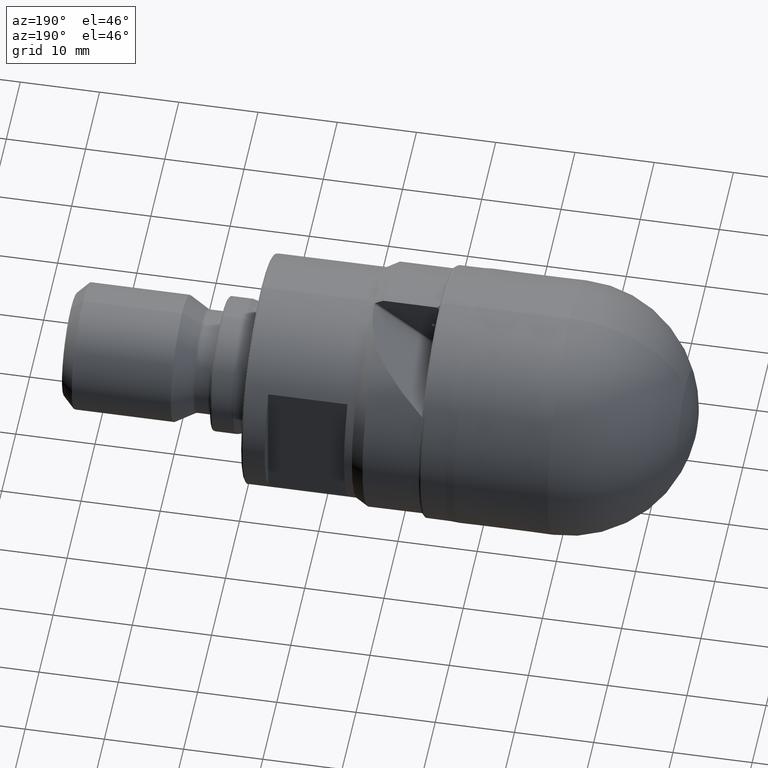
[diagram: clean part render]
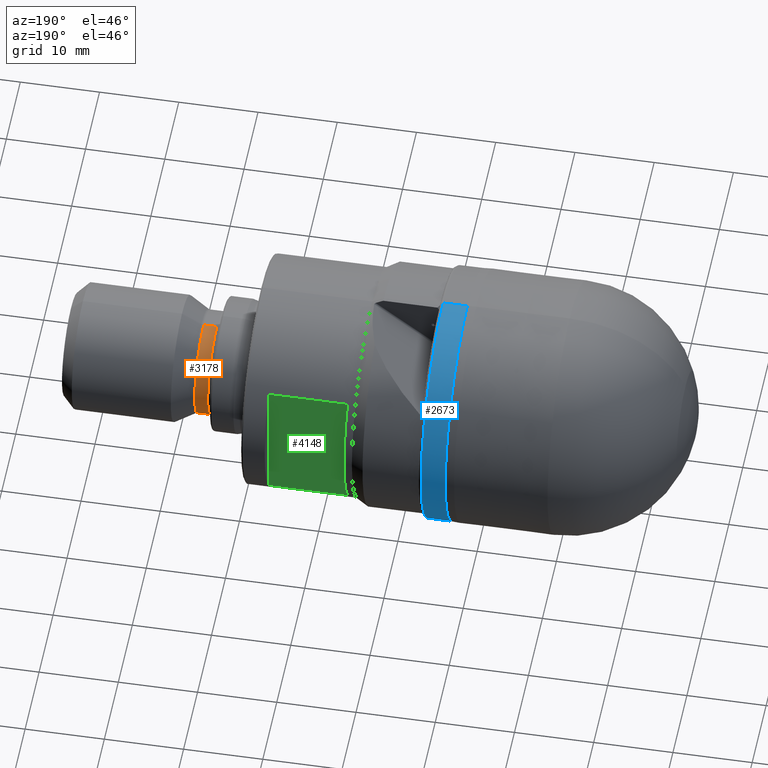
[diagram: same view with three faces highlighted in distinct colors, each labeled with its STEP entity id]
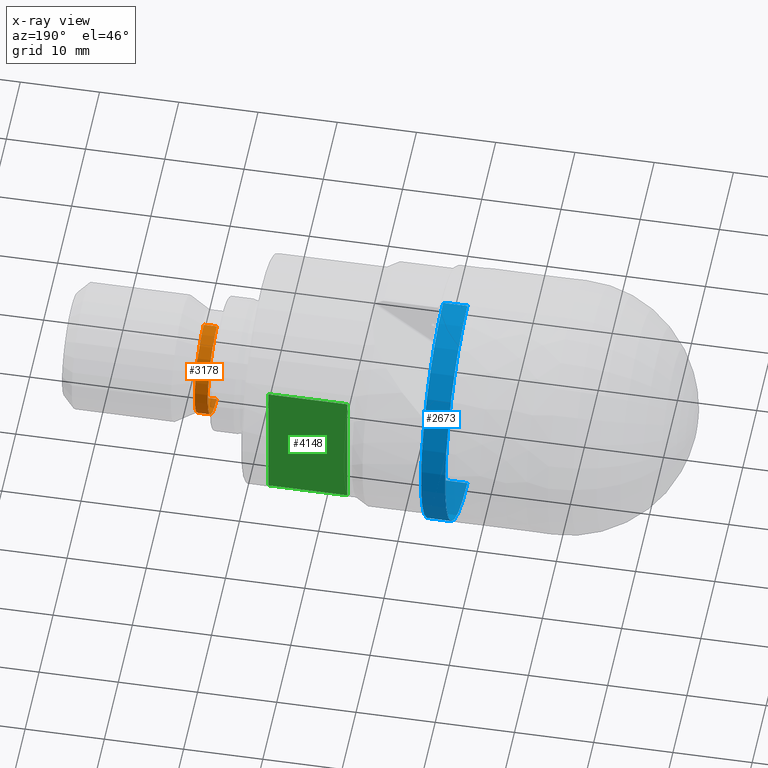
[diagram: x-ray of the same camera — body ghosted, the three highlighted faces saturated]
A machine part, auxiliary view with three faces highlighted in distinct colors.
The next image is the same camera in x-ray (body ghosted, the three faces saturated) — at least one of them is partly hidden behind the body in this view.
Their STEP definitions:

[orange] entity #3178 — the highlighted cylindrical surface (partial cylindrical patch) has radius 6.5 mm, axis along (-1, 0, 0).
#43 = CYLINDRICAL_SURFACE ( 'NONE', #177, 6.499999999999997335 ) ;
#177 = AXIS2_PLACEMENT_3D ( 'NONE', #3841, #1964, #1590 ) ;
#307 = EDGE_CURVE ( 'NONE', #3893, #3028, #3618, .T. ) ;
#576 = CARTESIAN_POINT ( 'NONE',  ( -4.762142644779060241, 0.0000000000000000000, 6.499999999999997335 ) ) ;
#906 = LINE ( 'NONE', #1296, #1303 ) ;
#1093 = EDGE_LOOP ( 'NONE', ( #2242, #4563, #3816, #3951 ) ) ;
#1296 = CARTESIAN_POINT ( 'NONE',  ( -4.762142644779060241, 7.960204194457792519E-16, -6.499999999999997335 ) ) ;
#1303 = VECTOR ( 'NONE', #3323, 1000.000000000000000 ) ;
#1498 = CIRCLE ( 'NONE', #4669, 6.499999999999999112 ) ;
#1590 = DIRECTION ( 'NONE',  ( 0.0000000000000000000, 0.0000000000000000000, 1.000000000000000000 ) ) ;
#1633 = CIRCLE ( 'NONE', #4796, 6.499999999999994671 ) ;
#1738 = DIRECTION ( 'NONE',  ( -1.000000000000000000, 0.0000000000000000000, 0.0000000000000000000 ) ) ;
#1964 = DIRECTION ( 'NONE',  ( -1.000000000000000000, 0.0000000000000000000, 0.0000000000000000000 ) ) ;
#2071 = DIRECTION ( 'NONE',  ( 0.0000000000000000000, 0.0000000000000000000, 1.000000000000000000 ) ) ;
#2105 = DIRECTION ( 'NONE',  ( -1.000000000000000000, 0.0000000000000000000, 0.0000000000000000000 ) ) ;
#2136 = DIRECTION ( 'NONE',  ( -1.000000000000000000, 0.0000000000000000000, 0.0000000000000000000 ) ) ;
#2197 = VERTEX_POINT ( 'NONE', #4042 ) ;
#2240 = VERTEX_POINT ( 'NONE', #4544 ) ;
#2242 = ORIENTED_EDGE ( 'NONE', *, *, #4902, .T. ) ;
#2305 = VECTOR ( 'NONE', #2105, 1000.000000000000000 ) ;
#2521 = DIRECTION ( 'NONE',  ( 0.0000000000000000000, 0.0000000000000000000, 1.000000000000000000 ) ) ;
#2629 = EDGE_CURVE ( 'NONE', #3028, #2197, #1498, .T. ) ;
#3028 = VERTEX_POINT ( 'NONE', #4861 ) ;
#3178 = ADVANCED_FACE ( 'NONE', ( #3451 ), #43, .T. ) ;
#3224 = CARTESIAN_POINT ( 'NONE',  ( 56.25675228318800691, 0.0000000000000000000, 0.0000000000000000000 ) ) ;
#3323 = DIRECTION ( 'NONE',  ( -1.000000000000000000, 0.0000000000000000000, 0.0000000000000000000 ) ) ;
#3451 = FACE_OUTER_BOUND ( 'NONE', #1093, .T. ) ;
#3485 = CARTESIAN_POINT ( 'NONE',  ( 56.25675228318800691, 0.0000000000000000000, 6.499999999999994671 ) ) ;
#3610 = CARTESIAN_POINT ( 'NONE',  ( 54.61559800999998515, 0.0000000000000000000, 0.0000000000000000000 ) ) ;
#3618 = LINE ( 'NONE', #576, #2305 ) ;
#3816 = ORIENTED_EDGE ( 'NONE', *, *, #2629, .F. ) ;
#3841 = CARTESIAN_POINT ( 'NONE',  ( -4.762142644779060241, 0.0000000000000000000, 0.0000000000000000000 ) ) ;
#3893 = VERTEX_POINT ( 'NONE', #3485 ) ;
#3938 = EDGE_CURVE ( 'NONE', #2240, #2197, #906, .T. ) ;
#3951 = ORIENTED_EDGE ( 'NONE', *, *, #307, .F. ) ;
#4042 = CARTESIAN_POINT ( 'NONE',  ( 54.61559800999998515, 8.327598234202001119E-16, -6.500000000000000000 ) ) ;
#4544 = CARTESIAN_POINT ( 'NONE',  ( 56.25675228318800691, 7.960204194457791533E-16, -6.499999999999994671 ) ) ;
#4563 = ORIENTED_EDGE ( 'NONE', *, *, #3938, .T. ) ;
#4669 = AXIS2_PLACEMENT_3D ( 'NONE', #3610, #1738, #2071 ) ;
#4796 = AXIS2_PLACEMENT_3D ( 'NONE', #3224, #2136, #2521 ) ;
#4861 = CARTESIAN_POINT ( 'NONE',  ( 54.61559800999998515, 0.0000000000000000000, 6.499999999999999112 ) ) ;
#4902 = EDGE_CURVE ( 'NONE', #3893, #2240, #1633, .T. ) ;

[blue] entity #2673 — the highlighted conical surface has half-angle 0.354 deg.
#379 = CARTESIAN_POINT ( 'NONE',  ( 26.03898982724205169, 0.0000000000000000000, 15.85229918174536579 ) ) ;
#566 = DIRECTION ( 'NONE',  ( -0.9999809403253847595, 7.561039749762266393E-19, -0.006174057495619598469 ) ) ;
#624 = AXIS2_PLACEMENT_3D ( 'NONE', #3587, #2159, #3183 ) ;
#662 = EDGE_CURVE ( 'NONE', #1955, #947, #4761, .T. ) ;
#671 = CARTESIAN_POINT ( 'NONE',  ( 26.03898982724205169, 0.0000000000000000000, 15.85229918174536579 ) ) ;
#727 = DIRECTION ( 'NONE',  ( 1.000000000000000000, 0.0000000000000000000, 0.0000000000000000000 ) ) ;
#947 = VERTEX_POINT ( 'NONE', #3733 ) ;
#1040 = DIRECTION ( 'NONE',  ( -1.000000000000000000, -0.0000000000000000000, -0.0000000000000000000 ) ) ;
#1100 = AXIS2_PLACEMENT_3D ( 'NONE', #4233, #1040, #2552 ) ;
#1185 = CONICAL_SURFACE ( 'NONE', #624, 15.85229918174536579, 0.006174096721094290627 ) ;
#1209 = CARTESIAN_POINT ( 'NONE',  ( 26.03898982724205169, 1.941346745205066833E-15, -15.85229918174536579 ) ) ;
#1324 = DIRECTION ( 'NONE',  ( -0.9999809403253847595, 0.0000000000000000000, 0.006174057495619598469 ) ) ;
#1342 = ORIENTED_EDGE ( 'NONE', *, *, #662, .T. ) ;
#1458 = EDGE_CURVE ( 'NONE', #1891, #2615, #3063, .T. ) ;
#1686 = EDGE_LOOP ( 'NONE', ( #1342, #3095, #2132, #3267 ) ) ;
#1704 = EDGE_CURVE ( 'NONE', #1955, #2615, #3307, .T. ) ;
#1891 = VERTEX_POINT ( 'NONE', #4856 ) ;
#1948 = DIRECTION ( 'NONE',  ( 0.0000000000000000000, 0.0000000000000000000, 1.000000000000000000 ) ) ;
#1955 = VERTEX_POINT ( 'NONE', #379 ) ;
#2132 = ORIENTED_EDGE ( 'NONE', *, *, #1458, .T. ) ;
#2159 = DIRECTION ( 'NONE',  ( -1.000000000000000000, -0.0000000000000000000, -0.0000000000000000000 ) ) ;
#2508 = VECTOR ( 'NONE', #1324, 1000.000000000000227 ) ;
#2552 = DIRECTION ( 'NONE',  ( 0.0000000000000000000, 0.0000000000000000000, 1.000000000000000000 ) ) ;
#2615 = VERTEX_POINT ( 'NONE', #2900 ) ;
#2673 = ADVANCED_FACE ( 'NONE', ( #3653 ), #1185, .T. ) ;
#2830 = LINE ( 'NONE', #1209, #4870 ) ;
#2900 = CARTESIAN_POINT ( 'NONE',  ( 22.99332252842983948, 0.0000000000000000000, 15.87110366516809457 ) ) ;
#2960 = CARTESIAN_POINT ( 'NONE',  ( 22.99332252842983948, 0.0000000000000000000, 0.0000000000000000000 ) ) ;
#3063 = CIRCLE ( 'NONE', #3470, 15.87110366516809812 ) ;
#3095 = ORIENTED_EDGE ( 'NONE', *, *, #4055, .T. ) ;
#3183 = DIRECTION ( 'NONE',  ( 0.0000000000000000000, 0.0000000000000000000, 1.000000000000000000 ) ) ;
#3267 = ORIENTED_EDGE ( 'NONE', *, *, #1704, .F. ) ;
#3307 = LINE ( 'NONE', #671, #2508 ) ;
#3470 = AXIS2_PLACEMENT_3D ( 'NONE', #2960, #727, #1948 ) ;
#3587 = CARTESIAN_POINT ( 'NONE',  ( 26.03898982724205169, 0.0000000000000000000, 0.0000000000000000000 ) ) ;
#3653 = FACE_OUTER_BOUND ( 'NONE', #1686, .T. ) ;
#3733 = CARTESIAN_POINT ( 'NONE',  ( 26.03898982724205169, 1.942498187726729906E-15, -15.85229918174536579 ) ) ;
#4055 = EDGE_CURVE ( 'NONE', #947, #1891, #2830, .T. ) ;
#4233 = CARTESIAN_POINT ( 'NONE',  ( 26.03898982724205169, 0.0000000000000000000, 0.0000000000000000000 ) ) ;
#4761 = CIRCLE ( 'NONE', #1100, 15.85229918174536579 ) ;
#4856 = CARTESIAN_POINT ( 'NONE',  ( 22.99332252842983948, 1.943649630248393373E-15, -15.87110366516809457 ) ) ;
#4870 = VECTOR ( 'NONE', #566, 1000.000000000000227 ) ;

[green] entity #4148 — the highlighted planar face has unit normal (0, -1, 0).
#112 = CARTESIAN_POINT ( 'NONE',  ( 36.01559800999998373, 12.00000000000000000, -9.999999999999998224 ) ) ;
#156 = CARTESIAN_POINT ( 'NONE',  ( -4.762142644779060241, 12.00000000000000000, -8.139410298049851278 ) ) ;
#240 = CARTESIAN_POINT ( 'NONE',  ( 36.01559800999998373, 12.00000000000000000, -8.139410298049851278 ) ) ;
#277 = VECTOR ( 'NONE', #678, 1000.000000000000000 ) ;
#278 = VERTEX_POINT ( 'NONE', #240 ) ;
#375 = ORIENTED_EDGE ( 'NONE', *, *, #2419, .F. ) ;
#604 = ORIENTED_EDGE ( 'NONE', *, *, #3657, .F. ) ;
#607 = LINE ( 'NONE', #2561, #277 ) ;
#678 = DIRECTION ( 'NONE',  ( 0.0000000000000000000, 0.0000000000000000000, 1.000000000000000000 ) ) ;
#880 = EDGE_CURVE ( 'NONE', #278, #3074, #607, .T. ) ;
#973 = DIRECTION ( 'NONE',  ( 0.0000000000000000000, 0.0000000000000000000, 1.000000000000000000 ) ) ;
#984 = CARTESIAN_POINT ( 'NONE',  ( -4.762142644779060241, 12.00000000000000000, 8.139410298049854831 ) ) ;
#1009 = LINE ( 'NONE', #4782, #4632 ) ;
#1233 = PLANE ( 'NONE',  #1546 ) ;
#1283 = DIRECTION ( 'NONE',  ( 0.0000000000000000000, -1.000000000000000000, 0.0000000000000000000 ) ) ;
#1546 = AXIS2_PLACEMENT_3D ( 'NONE', #112, #1283, #3956 ) ;
#2419 = EDGE_CURVE ( 'NONE', #3635, #3074, #4536, .T. ) ;
#2427 = CARTESIAN_POINT ( 'NONE',  ( 46.01559800999998373, 12.00000000000000000, 8.139410298049851278 ) ) ;
#2561 = CARTESIAN_POINT ( 'NONE',  ( 36.01559800999998373, 12.00000000000000000, -9.999999999999998224 ) ) ;
#2866 = VERTEX_POINT ( 'NONE', #3836 ) ;
#2912 = LINE ( 'NONE', #156, #4615 ) ;
#2952 = ORIENTED_EDGE ( 'NONE', *, *, #880, .T. ) ;
#3074 = VERTEX_POINT ( 'NONE', #3790 ) ;
#3221 = DIRECTION ( 'NONE',  ( 1.000000000000000000, -0.0000000000000000000, -0.0000000000000000000 ) ) ;
#3635 = VERTEX_POINT ( 'NONE', #2427 ) ;
#3657 = EDGE_CURVE ( 'NONE', #278, #2866, #2912, .T. ) ;
#3790 = CARTESIAN_POINT ( 'NONE',  ( 36.01559800999998373, 12.00000000000000000, 8.139410298049854831 ) ) ;
#3836 = CARTESIAN_POINT ( 'NONE',  ( 46.01559800999998373, 12.00000000000000000, -8.139410298049854831 ) ) ;
#3913 = EDGE_LOOP ( 'NONE', ( #4039, #604, #2952, #375 ) ) ;
#3956 = DIRECTION ( 'NONE',  ( 0.0000000000000000000, 0.0000000000000000000, -1.000000000000000000 ) ) ;
#4039 = ORIENTED_EDGE ( 'NONE', *, *, #4199, .F. ) ;
#4120 = DIRECTION ( 'NONE',  ( -1.000000000000000000, 0.0000000000000000000, 0.0000000000000000000 ) ) ;
#4148 = ADVANCED_FACE ( 'NONE', ( #4687 ), #1233, .F. ) ;
#4199 = EDGE_CURVE ( 'NONE', #2866, #3635, #1009, .T. ) ;
#4536 = LINE ( 'NONE', #984, #4834 ) ;
#4615 = VECTOR ( 'NONE', #3221, 1000.000000000000000 ) ;
#4632 = VECTOR ( 'NONE', #973, 1000.000000000000000 ) ;
#4687 = FACE_OUTER_BOUND ( 'NONE', #3913, .T. ) ;
#4782 = CARTESIAN_POINT ( 'NONE',  ( 46.01559800999998373, 12.00000000000000000, -10.00000000000000178 ) ) ;
#4834 = VECTOR ( 'NONE', #4120, 1000.000000000000000 ) ;